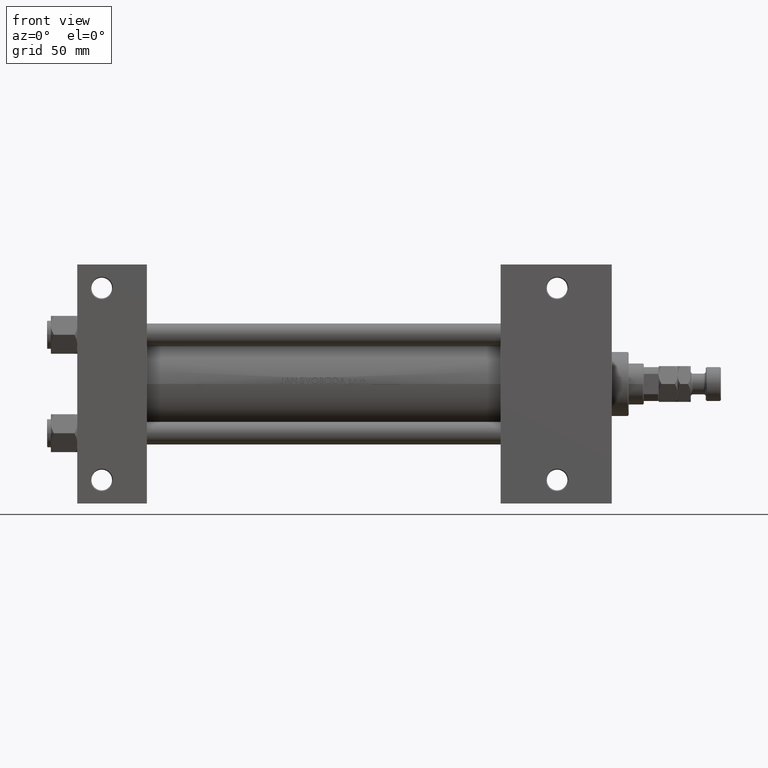
[diagram: clean part render]
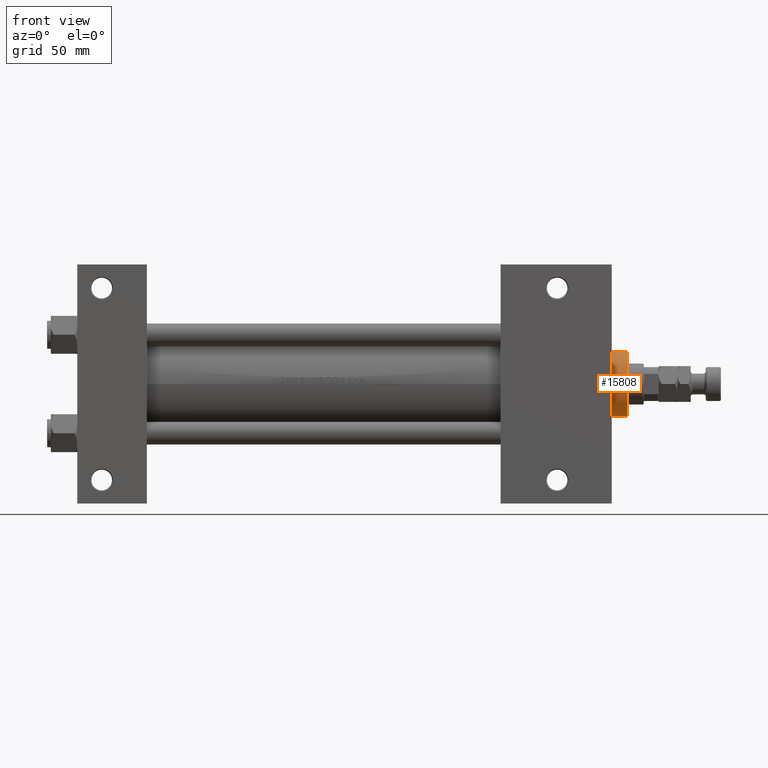
[diagram: same view with one face highlighted and labeled with its STEP entity id]
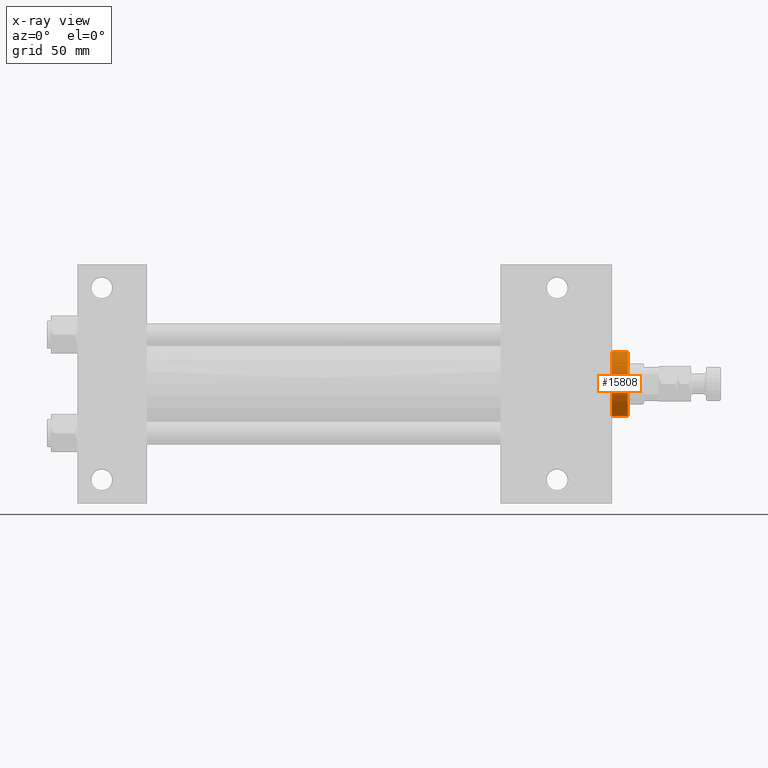
[diagram: x-ray of the same camera — body ghosted, the highlighted face saturated]
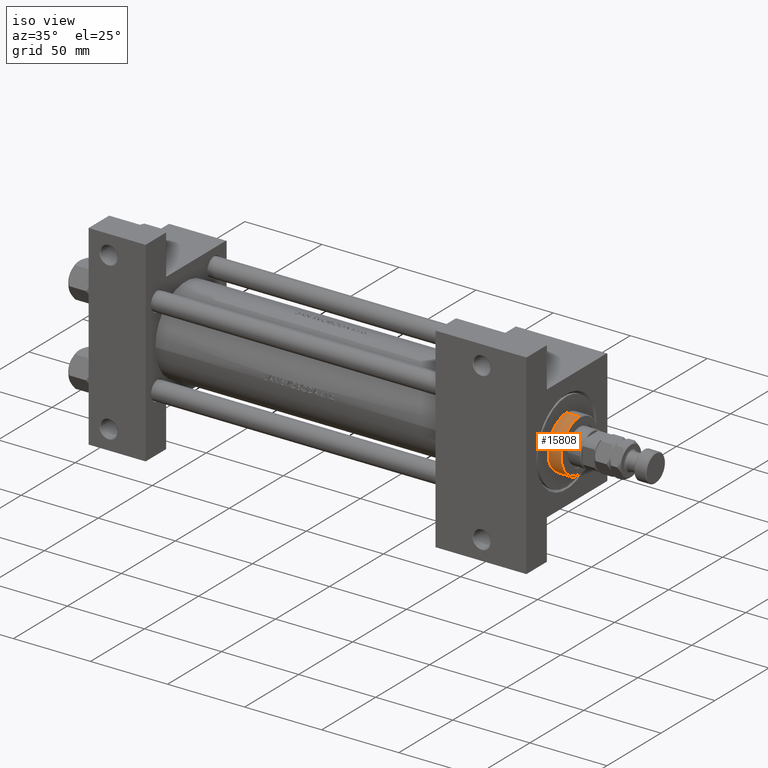
[diagram: same view with one face highlighted and labeled with its STEP entity id]
A machine part, front view. The second image highlights one B-rep face of the part: STEP entity #15808.
The next image is the same camera in x-ray: the body ghosted, the highlighted face saturated — about 0% of this face is hidden behind the body in this view.
A second angle (iso view) of the same face is appended — the face is thin or edge-on in the first view.
In plain terms, the highlighted cylindrical surface (edge-blend (fillet) strip) has radius 17 mm, axis along (-1, -0, 0).
Its self-contained STEP definition (entity closure, byte-faithful):
#4308 = VECTOR ( 'NONE', #5999, 1000.000000000000000 ) ;
#4925 = ORIENTED_EDGE ( 'NONE', *, *, #17172, .T. ) ;
#5999 = DIRECTION ( 'NONE',  ( -0.000000000000000000, -0.000000000000000000, -1.000000000000000000 ) ) ;
#7110 = DIRECTION ( 'NONE',  ( -1.000000000000000000, 0.000000000000000000, 0.000000000000000000 ) ) ;
#7222 = AXIS2_PLACEMENT_3D ( 'NONE', #37851, #7357, #7110 ) ;
#7357 = DIRECTION ( 'NONE',  ( -0.000000000000000000, -0.000000000000000000, -1.000000000000000000 ) ) ;
#7591 = CARTESIAN_POINT ( 'NONE',  ( -17.00000000000000000, 0.000000000000000000, 37.19999999999999574 ) ) ;
#7667 = VECTOR ( 'NONE', #38292, 1000.000000000000000 ) ;
#11212 = DIRECTION ( 'NONE',  ( 1.000000000000000000, 0.000000000000000000, 0.000000000000000000 ) ) ;
#12912 = CARTESIAN_POINT ( 'NONE',  ( 0.000000000000000000, 0.000000000000000000, 37.19999999999999574 ) ) ;
#13784 = CARTESIAN_POINT ( 'NONE',  ( 17.00000000000000000, 2.081899558550500280E-15, 28.69999999999999929 ) ) ;
#14123 = VERTEX_POINT ( 'NONE', #13784 ) ;
#14794 = DIRECTION ( 'NONE',  ( 0.000000000000000000, 0.000000000000000000, 1.000000000000000000 ) ) ;
#15235 = CARTESIAN_POINT ( 'NONE',  ( -17.00000000000000000, 0.000000000000000000, 37.69999999999999574 ) ) ;
#15808 = ADVANCED_FACE ( 'NONE', ( #26569 ), #26308, .T. ) ;
#17172 = EDGE_CURVE ( 'NONE', #30663, #34503, #17894, .T. ) ;
#17894 = CIRCLE ( 'NONE', #30956, 17.00000000000000000 ) ;
#21339 = DIRECTION ( 'NONE',  ( 1.000000000000000000, 0.000000000000000000, 0.000000000000000000 ) ) ;
#21940 = EDGE_CURVE ( 'NONE', #34191, #14123, #33593, .T. ) ;
#22105 = LINE ( 'NONE', #25448, #4308 ) ;
#23172 = LINE ( 'NONE', #15235, #7667 ) ;
#25448 = CARTESIAN_POINT ( 'NONE',  ( 17.00000000000000000, 2.081899558550500280E-15, 37.69999999999999574 ) ) ;
#26308 = CYLINDRICAL_SURFACE ( 'NONE', #7222, 17.00000000000000000 ) ;
#26563 = CARTESIAN_POINT ( 'NONE',  ( 17.00000000000000000, 2.081899558550500280E-15, 37.19999999999999574 ) ) ;
#26569 = FACE_OUTER_BOUND ( 'NONE', #41011, .T. ) ;
#26660 = EDGE_CURVE ( 'NONE', #30663, #14123, #22105, .T. ) ;
#28216 = ORIENTED_EDGE ( 'NONE', *, *, #31976, .T. ) ;
#30663 = VERTEX_POINT ( 'NONE', #26563 ) ;
#30956 = AXIS2_PLACEMENT_3D ( 'NONE', #12912, #44682, #21339 ) ;
#31166 = CARTESIAN_POINT ( 'NONE',  ( 0.000000000000000000, 0.000000000000000000, 28.69999999999999929 ) ) ;
#31976 = EDGE_CURVE ( 'NONE', #34503, #34191, #23172, .T. ) ;
#32361 = ORIENTED_EDGE ( 'NONE', *, *, #21940, .T. ) ;
#33593 = CIRCLE ( 'NONE', #40140, 17.00000000000000000 ) ;
#34191 = VERTEX_POINT ( 'NONE', #46849 ) ;
#34503 = VERTEX_POINT ( 'NONE', #7591 ) ;
#37851 = CARTESIAN_POINT ( 'NONE',  ( 0.000000000000000000, 0.000000000000000000, 37.69999999999999574 ) ) ;
#38292 = DIRECTION ( 'NONE',  ( -0.000000000000000000, -0.000000000000000000, -1.000000000000000000 ) ) ;
#40140 = AXIS2_PLACEMENT_3D ( 'NONE', #31166, #14794, #11212 ) ;
#41011 = EDGE_LOOP ( 'NONE', ( #48428, #4925, #28216, #32361 ) ) ;
#44682 = DIRECTION ( 'NONE',  ( 0.000000000000000000, 0.000000000000000000, -1.000000000000000000 ) ) ;
#46849 = CARTESIAN_POINT ( 'NONE',  ( -17.00000000000000000, 0.000000000000000000, 28.69999999999999929 ) ) ;
#48428 = ORIENTED_EDGE ( 'NONE', *, *, #26660, .F. ) ;